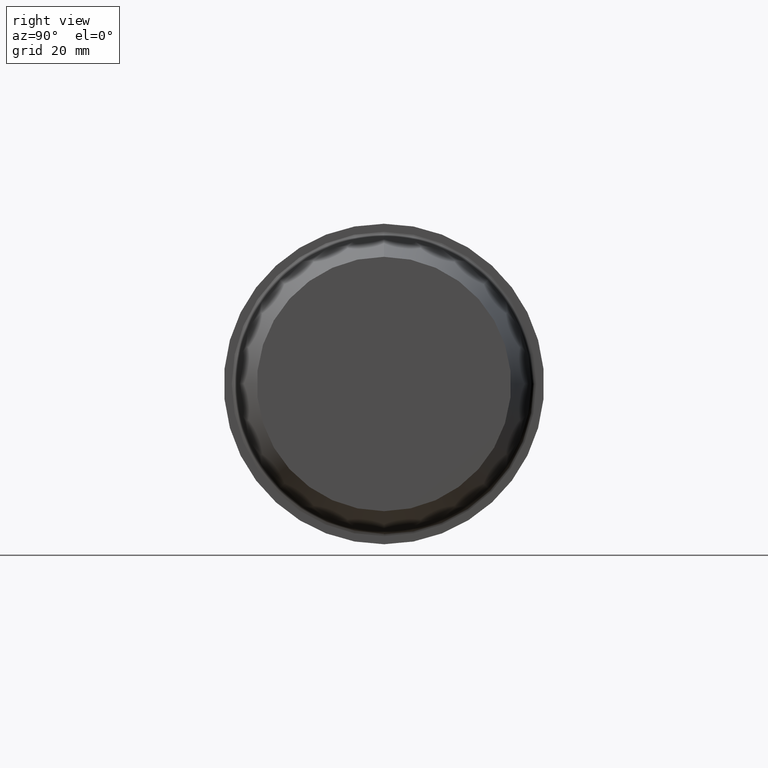
[diagram: clean part render]
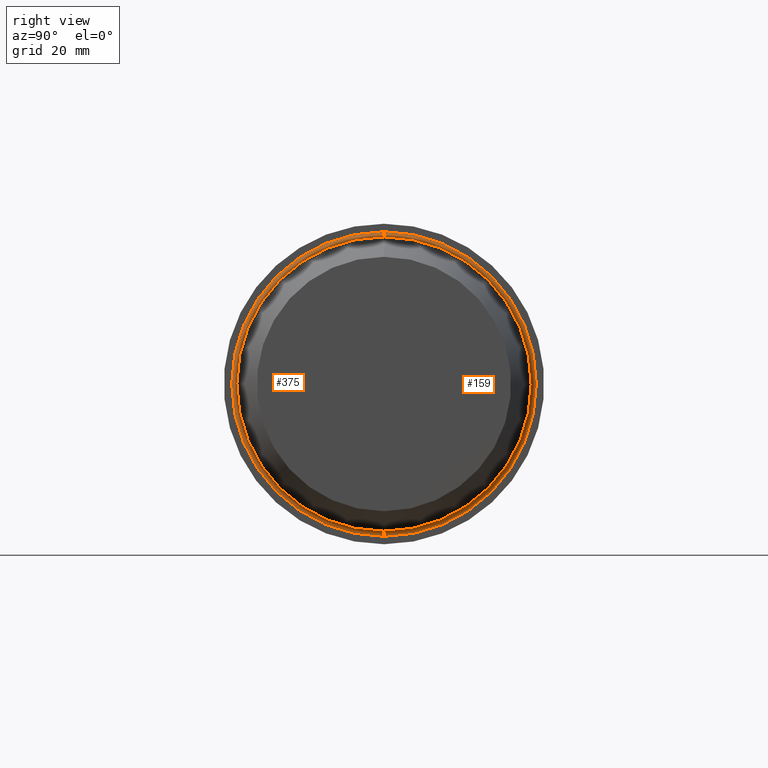
[diagram: same view with one multi-face feature highlighted, each face labeled with its STEP entity id]
A machine part, right view. The highlighted faces form ONE feature: a constant-radius fillet chain: 2 tangent blend faces with common blend radius 1 mm. The faces share edges in the B-rep.
Their STEP definitions:
[1] entity #159 (Torus):
#3 = CARTESIAN_POINT ( 'NONE',  ( 22.99999997654000339, 3.665046059601735471E-15, -29.92737221992073415 ) ) ;
#6 = DIRECTION ( 'NONE',  ( 0.000000000000000000, -1.224646799147346551E-16, 1.000000000000000000 ) ) ;
#9 = CIRCLE ( 'NONE', #227, 0.9999999989800008038 ) ;
#18 = VERTEX_POINT ( 'NONE', #301 ) ;
#27 = EDGE_CURVE ( 'NONE', #18, #182, #9, .T. ) ;
#36 = DIRECTION ( 'NONE',  ( 0.000000000000000000, 0.000000000000000000, 1.000000000000000000 ) ) ;
#37 = AXIS2_PLACEMENT_3D ( 'NONE', #3, #207, #6 ) ;
#44 = DIRECTION ( 'NONE',  ( 0.000000000000000000, 0.000000000000000000, 1.000000000000000000 ) ) ;
#46 = TOROIDAL_SURFACE ( 'NONE', #136, 29.92737221992073415, 0.9999999989799999156 ) ;
#80 = ORIENTED_EDGE ( 'NONE', *, *, #316, .F. ) ;
#91 = DIRECTION ( 'NONE',  ( 0.000000000000000000, -1.000000000000000000, 0.000000000000000000 ) ) ;
#97 = CARTESIAN_POINT ( 'NONE',  ( 22.99999997654000339, 0.000000000000000000, 29.92737221992073415 ) ) ;
#131 = AXIS2_PLACEMENT_3D ( 'NONE', #321, #357, #148 ) ;
#136 = AXIS2_PLACEMENT_3D ( 'NONE', #162, #250, #44 ) ;
#148 = DIRECTION ( 'NONE',  ( 0.000000000000000000, 0.000000000000000000, 1.000000000000000000 ) ) ;
#151 = CIRCLE ( 'NONE', #131, 29.92737221947408344 ) ;
#159 = ADVANCED_FACE ( 'NONE', ( #231 ), #46, .F. ) ;
#162 = CARTESIAN_POINT ( 'NONE',  ( 22.99999997654000339, 0.000000000000000000, 0.000000000000000000 ) ) ;
#172 = ORIENTED_EDGE ( 'NONE', *, *, #27, .T. ) ;
#173 = EDGE_LOOP ( 'NONE', ( #80, #341, #172, #312 ) ) ;
#175 = DIRECTION ( 'NONE',  ( 0.000000000000000000, 0.000000000000000000, -1.000000000000000000 ) ) ;
#182 = VERTEX_POINT ( 'NONE', #230 ) ;
#188 = CIRCLE ( 'NONE', #195, 28.93020810049118552 ) ;
#195 = AXIS2_PLACEMENT_3D ( 'NONE', #214, #268, #36 ) ;
#202 = CARTESIAN_POINT ( 'NONE',  ( 22.92474230661676060, 3.542928674893338124E-15, -28.93020810049118552 ) ) ;
#207 = DIRECTION ( 'NONE',  ( 0.000000000000000000, 1.000000000000000000, 1.224646799147350002E-16 ) ) ;
#211 = CIRCLE ( 'NONE', #37, 0.9999999989800008038 ) ;
#214 = CARTESIAN_POINT ( 'NONE',  ( 22.92474230661676060, 0.000000000000000000, 0.000000000000000000 ) ) ;
#227 = AXIS2_PLACEMENT_3D ( 'NONE', #97, #91, #175 ) ;
#230 = CARTESIAN_POINT ( 'NONE',  ( 22.92474230661676060, 0.000000000000000000, 28.93020810049118552 ) ) ;
#231 = FACE_OUTER_BOUND ( 'NONE', #173, .T. ) ;
#250 = DIRECTION ( 'NONE',  ( -1.000000000000000000, 0.000000000000000000, 0.000000000000000000 ) ) ;
#260 = VERTEX_POINT ( 'NONE', #202 ) ;
#268 = DIRECTION ( 'NONE',  ( -1.000000000000000000, 0.000000000000000000, 0.000000000000000000 ) ) ;
#271 = CARTESIAN_POINT ( 'NONE',  ( 21.99999997755999814, 3.665046059574384875E-15, -29.92737221969742833 ) ) ;
#277 = EDGE_CURVE ( 'NONE', #18, #345, #151, .T. ) ;
#301 = CARTESIAN_POINT ( 'NONE',  ( 21.99999997755999814, 0.000000000000000000, 29.92737221969742833 ) ) ;
#305 = EDGE_CURVE ( 'NONE', #182, #260, #188, .T. ) ;
#312 = ORIENTED_EDGE ( 'NONE', *, *, #305, .T. ) ;
#316 = EDGE_CURVE ( 'NONE', #345, #260, #211, .T. ) ;
#321 = CARTESIAN_POINT ( 'NONE',  ( 21.99999997755999814, 0.000000000000000000, 0.000000000000000000 ) ) ;
#341 = ORIENTED_EDGE ( 'NONE', *, *, #277, .F. ) ;
#345 = VERTEX_POINT ( 'NONE', #271 ) ;
#357 = DIRECTION ( 'NONE',  ( -1.000000000000000000, 0.000000000000000000, 0.000000000000000000 ) ) ;
[2] entity #375 (Torus):
#3 = CARTESIAN_POINT ( 'NONE',  ( 22.99999997654000339, 3.665046059601735471E-15, -29.92737221992073415 ) ) ;
#6 = DIRECTION ( 'NONE',  ( 0.000000000000000000, -1.224646799147346551E-16, 1.000000000000000000 ) ) ;
#9 = CIRCLE ( 'NONE', #227, 0.9999999989800008038 ) ;
#18 = VERTEX_POINT ( 'NONE', #301 ) ;
#19 = ORIENTED_EDGE ( 'NONE', *, *, #27, .F. ) ;
#27 = EDGE_CURVE ( 'NONE', #18, #182, #9, .T. ) ;
#35 = DIRECTION ( 'NONE',  ( -1.000000000000000000, 0.000000000000000000, 0.000000000000000000 ) ) ;
#37 = AXIS2_PLACEMENT_3D ( 'NONE', #3, #207, #6 ) ;
#55 = ORIENTED_EDGE ( 'NONE', *, *, #103, .F. ) ;
#65 = DIRECTION ( 'NONE',  ( 0.000000000000000000, 0.000000000000000000, 1.000000000000000000 ) ) ;
#91 = DIRECTION ( 'NONE',  ( 0.000000000000000000, -1.000000000000000000, 0.000000000000000000 ) ) ;
#97 = CARTESIAN_POINT ( 'NONE',  ( 22.99999997654000339, 0.000000000000000000, 29.92737221992073415 ) ) ;
#103 = EDGE_CURVE ( 'NONE', #345, #18, #369, .T. ) ;
#109 = DIRECTION ( 'NONE',  ( -1.000000000000000000, 0.000000000000000000, 0.000000000000000000 ) ) ;
#137 = ORIENTED_EDGE ( 'NONE', *, *, #290, .T. ) ;
#164 = CARTESIAN_POINT ( 'NONE',  ( 22.99999997654000339, 0.000000000000000000, 0.000000000000000000 ) ) ;
#175 = DIRECTION ( 'NONE',  ( 0.000000000000000000, 0.000000000000000000, -1.000000000000000000 ) ) ;
#182 = VERTEX_POINT ( 'NONE', #230 ) ;
#183 = CIRCLE ( 'NONE', #370, 28.93020810049118552 ) ;
#198 = ORIENTED_EDGE ( 'NONE', *, *, #316, .T. ) ;
#202 = CARTESIAN_POINT ( 'NONE',  ( 22.92474230661676060, 3.542928674893338124E-15, -28.93020810049118552 ) ) ;
#207 = DIRECTION ( 'NONE',  ( 0.000000000000000000, 1.000000000000000000, 1.224646799147350002E-16 ) ) ;
#211 = CIRCLE ( 'NONE', #37, 0.9999999989800008038 ) ;
#212 = CARTESIAN_POINT ( 'NONE',  ( 21.99999997755999814, 0.000000000000000000, 0.000000000000000000 ) ) ;
#227 = AXIS2_PLACEMENT_3D ( 'NONE', #97, #91, #175 ) ;
#230 = CARTESIAN_POINT ( 'NONE',  ( 22.92474230661676060, 0.000000000000000000, 28.93020810049118552 ) ) ;
#233 = DIRECTION ( 'NONE',  ( 0.000000000000000000, 0.000000000000000000, 1.000000000000000000 ) ) ;
#241 = DIRECTION ( 'NONE',  ( -1.000000000000000000, 0.000000000000000000, 0.000000000000000000 ) ) ;
#260 = VERTEX_POINT ( 'NONE', #202 ) ;
#269 = AXIS2_PLACEMENT_3D ( 'NONE', #212, #35, #233 ) ;
#271 = CARTESIAN_POINT ( 'NONE',  ( 21.99999997755999814, 3.665046059574384875E-15, -29.92737221969742833 ) ) ;
#273 = CARTESIAN_POINT ( 'NONE',  ( 22.92474230661676060, 0.000000000000000000, 0.000000000000000000 ) ) ;
#290 = EDGE_CURVE ( 'NONE', #260, #182, #183, .T. ) ;
#301 = CARTESIAN_POINT ( 'NONE',  ( 21.99999997755999814, 0.000000000000000000, 29.92737221969742833 ) ) ;
#308 = AXIS2_PLACEMENT_3D ( 'NONE', #164, #109, #336 ) ;
#316 = EDGE_CURVE ( 'NONE', #345, #260, #211, .T. ) ;
#330 = TOROIDAL_SURFACE ( 'NONE', #308, 29.92737221992073415, 0.9999999989799999156 ) ;
#336 = DIRECTION ( 'NONE',  ( 0.000000000000000000, 0.000000000000000000, 1.000000000000000000 ) ) ;
#345 = VERTEX_POINT ( 'NONE', #271 ) ;
#369 = CIRCLE ( 'NONE', #269, 29.92737221947408344 ) ;
#370 = AXIS2_PLACEMENT_3D ( 'NONE', #273, #241, #65 ) ;
#373 = FACE_OUTER_BOUND ( 'NONE', #382, .T. ) ;
#375 = ADVANCED_FACE ( 'NONE', ( #373 ), #330, .F. ) ;
#382 = EDGE_LOOP ( 'NONE', ( #55, #198, #137, #19 ) ) ;